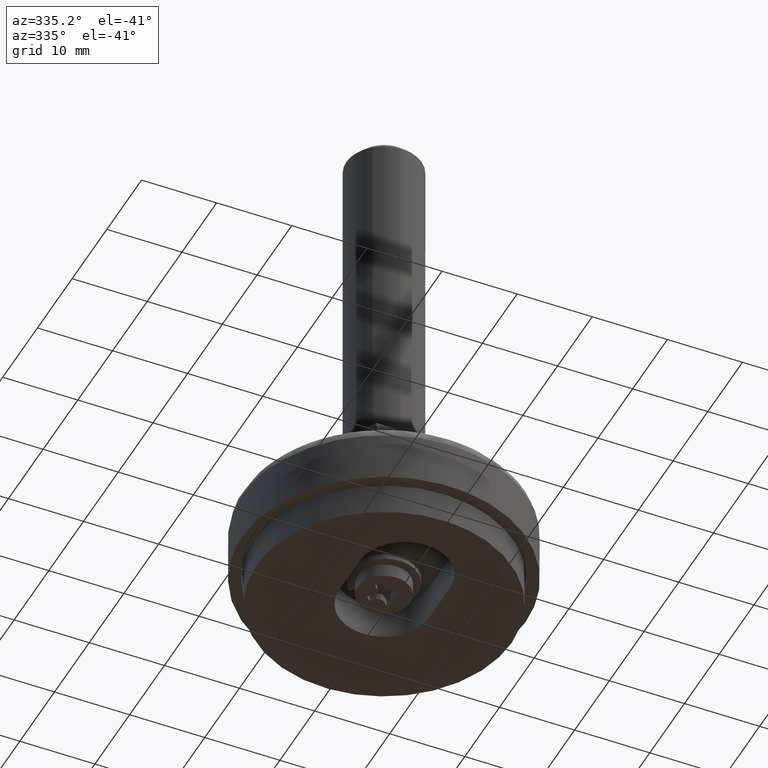
[diagram: clean part render]
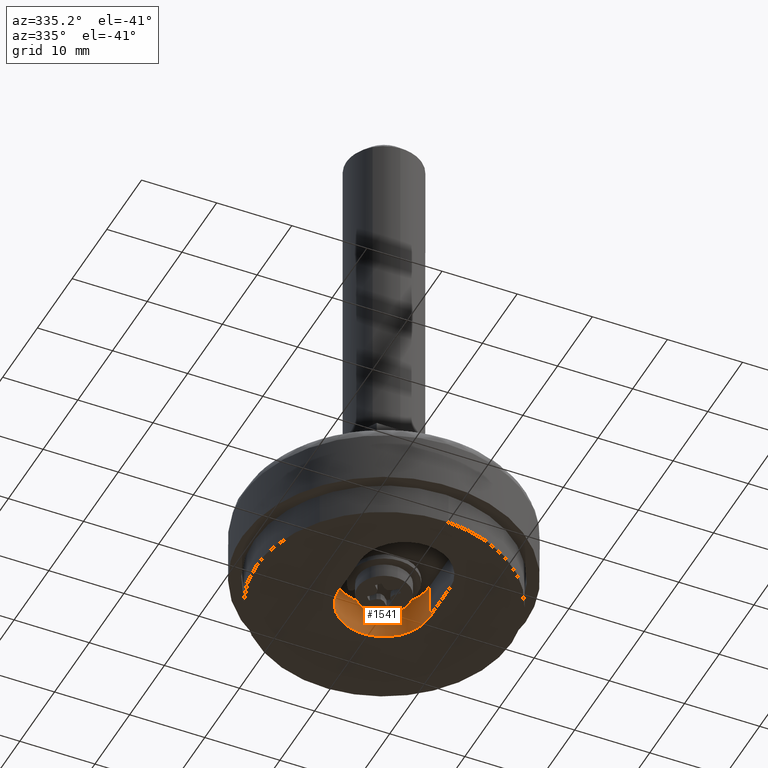
[diagram: same view with one face highlighted and labeled with its STEP entity id]
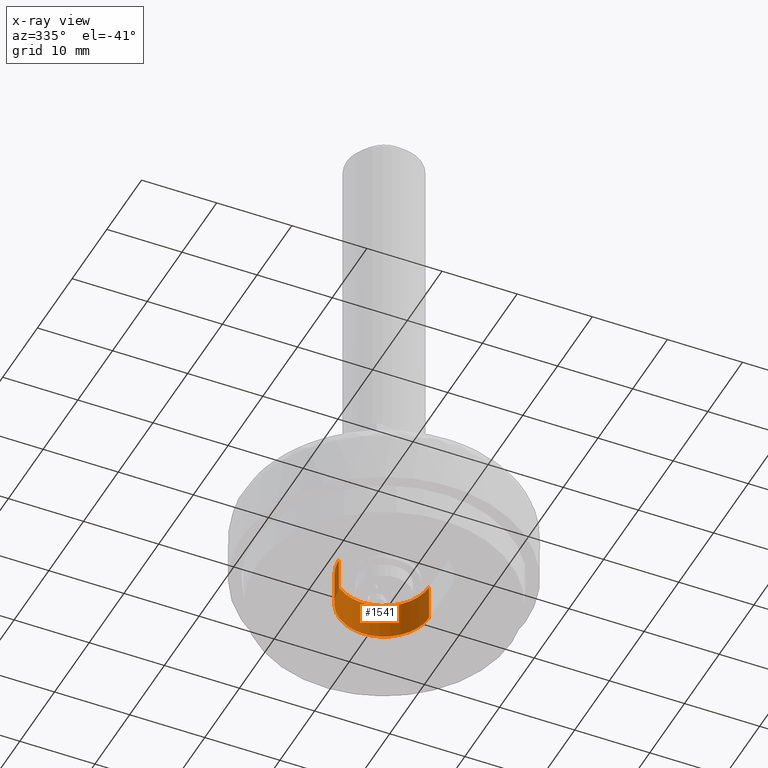
[diagram: x-ray of the same camera — body ghosted, the highlighted face saturated]
A machine part, auxiliary view. The second image highlights one B-rep face of the part: STEP entity #1541.
The next image is the same camera in x-ray: the body ghosted, the highlighted face saturated — about 0% of this face is hidden behind the body in this view.
In plain terms, the highlighted face is a freeform B-spline surface patch.
Its self-contained STEP definition (entity closure, byte-faithful):
#1437=CARTESIAN_POINT('',(-6.0,0.0,4.900000000000000));
#1438=VERTEX_POINT('',#1437);
#1444=CARTESIAN_POINT('',(6.0,1.469528E-015,4.900000000000000));
#1445=VERTEX_POINT('',#1444);
#1446=CARTESIAN_POINT('',(-6.0,0.0,4.900000000000000));
#1447=CARTESIAN_POINT('',(-6.0,6.0,4.900000000000000));
#1448=CARTESIAN_POINT('',(0.0,6.0,4.900000000000000));
#1449=CARTESIAN_POINT('',(6.0,6.0,4.900000000000000));
#1450=CARTESIAN_POINT('',(6.0,0.0,4.900000000000000));
#1458=(BOUNDED_CURVE()B_SPLINE_CURVE(2,(#1446,#1447,#1448,#1449,#1450),.UNSPECIFIED.,.F.,.U.)B_SPLINE_CURVE_WITH_KNOTS((3,2,3),(0.0,0.500000000000000,1.0),.UNSPECIFIED.)CURVE()GEOMETRIC_REPRESENTATION_ITEM()RATIONAL_B_SPLINE_CURVE((1.0,0.707106781186548,1.0,0.707106781186548,1.0))REPRESENTATION_ITEM(''));
#1459=EDGE_CURVE('',#1438,#1445,#1458,.T.);
#1474=CARTESIAN_POINT('',(6.0,1.469529E-015,0.0));
#1475=VERTEX_POINT('',#1474);
#1489=CARTESIAN_POINT('',(6.0,1.469528E-015,4.900000000000000));
#1490=CARTESIAN_POINT('',(6.0,1.469529E-015,0.0));
#1491=QUASI_UNIFORM_CURVE('',1,(#1489,#1490),.UNSPECIFIED.,.F.,.U.);
#1492=EDGE_CURVE('',#1445,#1475,#1491,.T.);
#1497=CARTESIAN_POINT('',(5.997943949853342,-0.157061689847248,5.022500000000001));
#1498=CARTESIAN_POINT('',(5.997943949853342,-0.157061689847248,-0.125562500000000));
#1499=CARTESIAN_POINT('',(6.163452437057416,6.163452437057395,5.022500000000000));
#1500=CARTESIAN_POINT('',(6.163452437057416,6.163452437057395,-0.125562500000000));
#1501=CARTESIAN_POINT('',(-0.157061689847229,5.997943949853343,5.022500000000001));
#1502=CARTESIAN_POINT('',(-0.157061689847229,5.997943949853343,-0.125562500000000));
#1503=CARTESIAN_POINT('',(-6.477575816751875,5.832435462649290,5.022500000000000));
#1504=CARTESIAN_POINT('',(-6.477575816751875,5.832435462649290,-0.125562500000000));
#1505=CARTESIAN_POINT('',(-5.981504002398768,-0.470754574367060,5.022500000000001));
#1506=CARTESIAN_POINT('',(-5.981504002398768,-0.470754574367060,-0.125562500000000));
#1514=(BOUNDED_SURFACE()B_SPLINE_SURFACE(1,2,((#1497,#1499,#1501,#1503,#1505),(#1498,#1500,#1502,#1504,#1506)),.UNSPECIFIED.,.F.,.F.,.U.)B_SPLINE_SURFACE_WITH_KNOTS((2,2),(3,2,3),(0.0,5.148062500000002),(0.0,10.311213743204060,20.622427486408132),.UNSPECIFIED.)GEOMETRIC_REPRESENTATION_ITEM()RATIONAL_B_SPLINE_SURFACE(((1.0,0.688354575693754,1.0,0.688354575693754,1.0),(1.0,0.688354575693754,1.0,0.688354575693754,1.0)))REPRESENTATION_ITEM('')SURFACE());
#1515=CARTESIAN_POINT('',(-6.0,0.0,0.0));
#1516=VERTEX_POINT('',#1515);
#1517=CARTESIAN_POINT('',(-6.0,0.0,0.0));
#1518=CARTESIAN_POINT('',(-6.0,6.0,0.0));
#1519=CARTESIAN_POINT('',(0.0,6.0,0.0));
#1520=CARTESIAN_POINT('',(6.0,6.0,0.0));
#1521=CARTESIAN_POINT('',(6.0,0.0,0.0));
#1529=(BOUNDED_CURVE()B_SPLINE_CURVE(2,(#1517,#1518,#1519,#1520,#1521),.UNSPECIFIED.,.F.,.U.)B_SPLINE_CURVE_WITH_KNOTS((3,2,3),(0.0,0.500000000000000,1.0),.UNSPECIFIED.)CURVE()GEOMETRIC_REPRESENTATION_ITEM()RATIONAL_B_SPLINE_CURVE((1.0,0.707106781186548,1.0,0.707106781186548,1.0))REPRESENTATION_ITEM(''));
#1530=EDGE_CURVE('',#1516,#1475,#1529,.T.);
#1531=ORIENTED_EDGE('',*,*,#1530,.T.);
#1532=ORIENTED_EDGE('',*,*,#1492,.F.);
#1533=ORIENTED_EDGE('',*,*,#1459,.F.);
#1534=CARTESIAN_POINT('',(-6.0,0.0,4.900000000000000));
#1535=CARTESIAN_POINT('',(-6.0,0.0,0.0));
#1536=QUASI_UNIFORM_CURVE('',1,(#1534,#1535),.UNSPECIFIED.,.F.,.U.);
#1537=EDGE_CURVE('',#1438,#1516,#1536,.T.);
#1538=ORIENTED_EDGE('',*,*,#1537,.T.);
#1539=EDGE_LOOP('',(#1531,#1532,#1533,#1538));
#1540=FACE_OUTER_BOUND('',#1539,.T.);
#1541=ADVANCED_FACE('',(#1540),#1514,.F.);